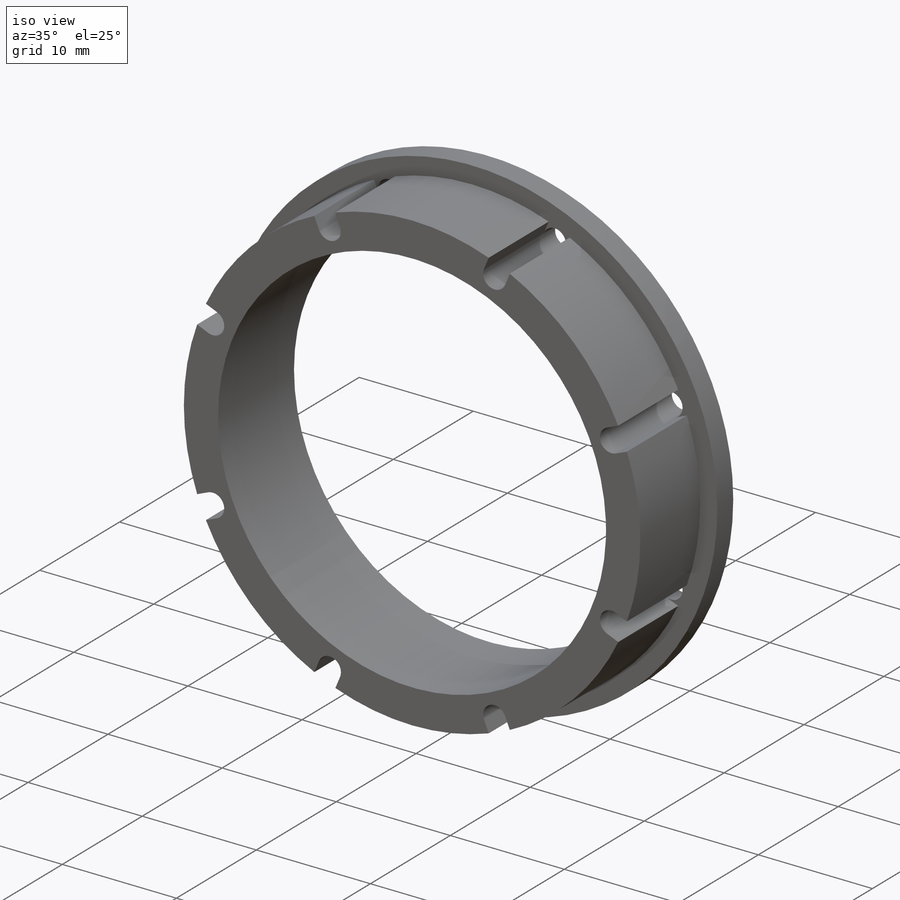
[diagram: iso view]
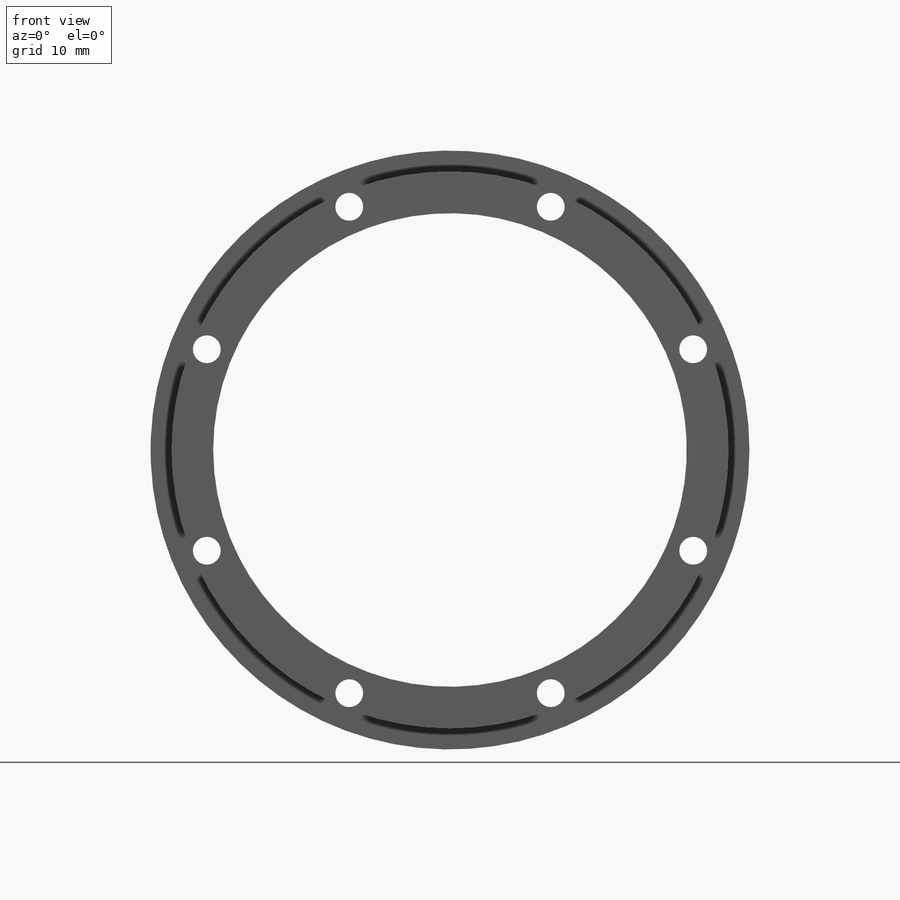
[diagram: front view]
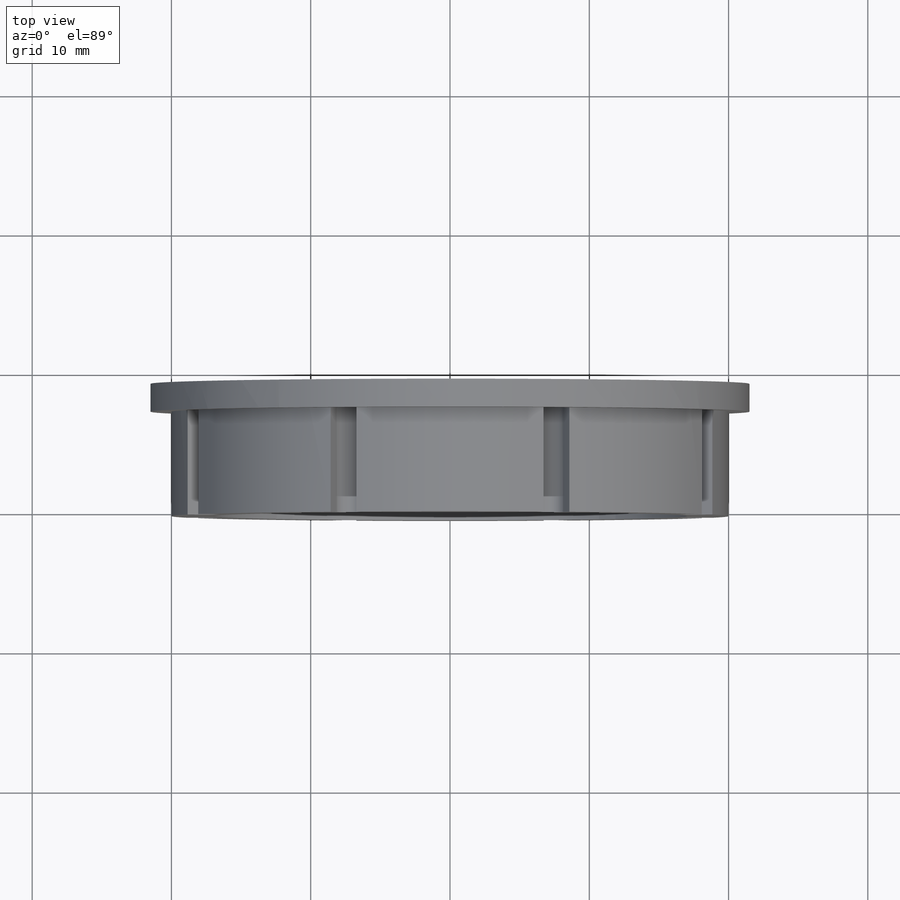
[diagram: top view]
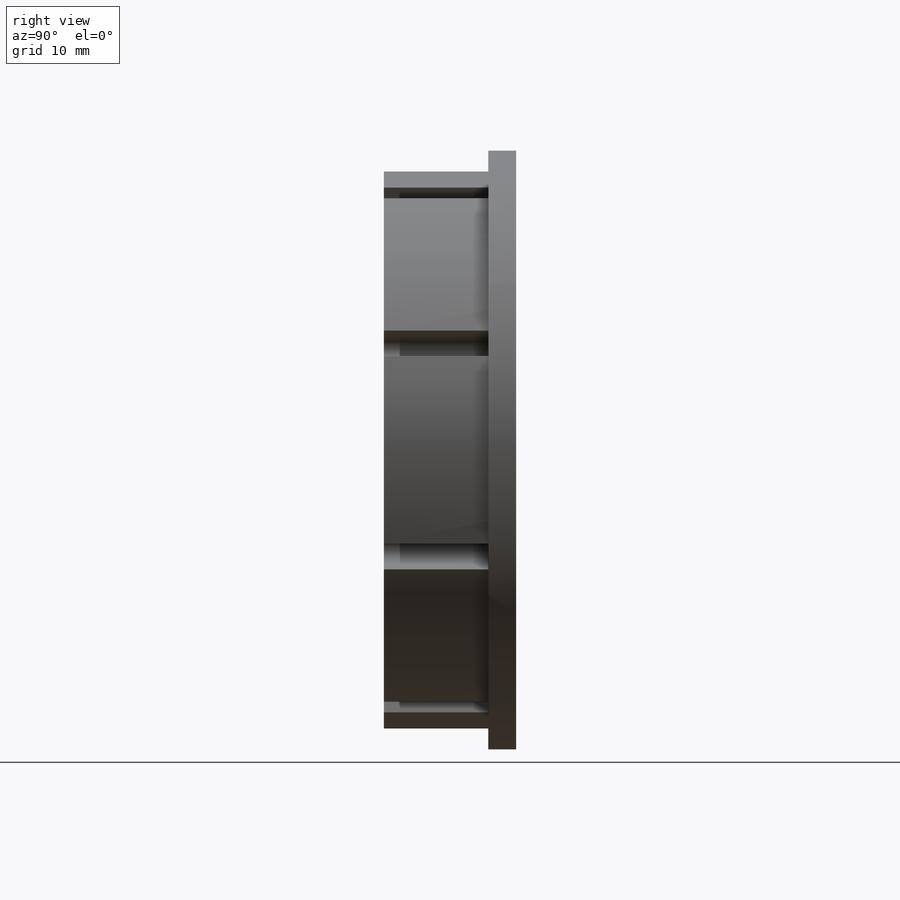
[diagram: right view]
SOLIDWORKS PART (.sldprt)
format: sldprt  version: not decoded by parser v0  size: 319,488 bytes
history: native  units: mm
features: sketch x6, plane x3, extrude x2, cut_extrude x2, material x1, hole x1 (+9 scaffold rows collapsed)
feature tree (24):
  scaffold x9  (default folders/planes/origin — collapsed)
  material  "PVC hart"
  plane  "Ebene vorne"
  plane  "Ebene oben"
  plane  "Ebene rechts"
  sketch  "Skizze1"  dims[c1.D1=40.0mm c1.D2=37.0mm c1.D3=50.0mm c2.D2=37.0mm c2.D4=40.0mm c2.D1=52.0mm c3.D2=~3.833712mm c3.D4=~49.608459mm c4.D2=3.0mm c4.D4=3.0mm c4.D1=1.0mm]
  extrude  "Aufsatz-Linear austragen1"  Depth=0.5mm
  sketch  "Skizze7"  dims[D1=4.5mm]
  extrude  "Aufsatz-Linear austragen2"  Depth=2mm
  hole  "Formsenkung für M3 Senkschraube mit Innensechskant1"  Diameter=1.6mm Depth=13.5mm
  sketch  "Skizze8"  dims[c1.D1=1.9mm c1.D3=17.0mm c2.D3=22.5deg]
  sketch  "Skizze9"  dims[Bohrerdurchmesser=1.6mm Bohrungstiefe=13.5mm Senkdurchmesser (Oben)=3.0mm Senkwinkel (Oben)=90.0deg Spitzenwinkel=118.0deg]
  sketch  "Skizze10"  dims[c1.D1=1.0mm c1.D2=20.0mm c1.D3=1.0mm c2.D1=~1.03021mm c2.D2=8.0]
  cut_extrude  "Schnitt-Linear austragen1"  [1 undecoded]
  cut_extrude  "Schnitt-Linear austragen3"  [1 undecoded]
  sketch  "Skizze10<3>"
decode coverage: 8 of 11 modeling features carry decoded parameters
note: ~ marks probable driven/reference dimensions
note: 2 parameter values undecoded
note: suppression state not decoded; provenance and decode notes live in map.json
